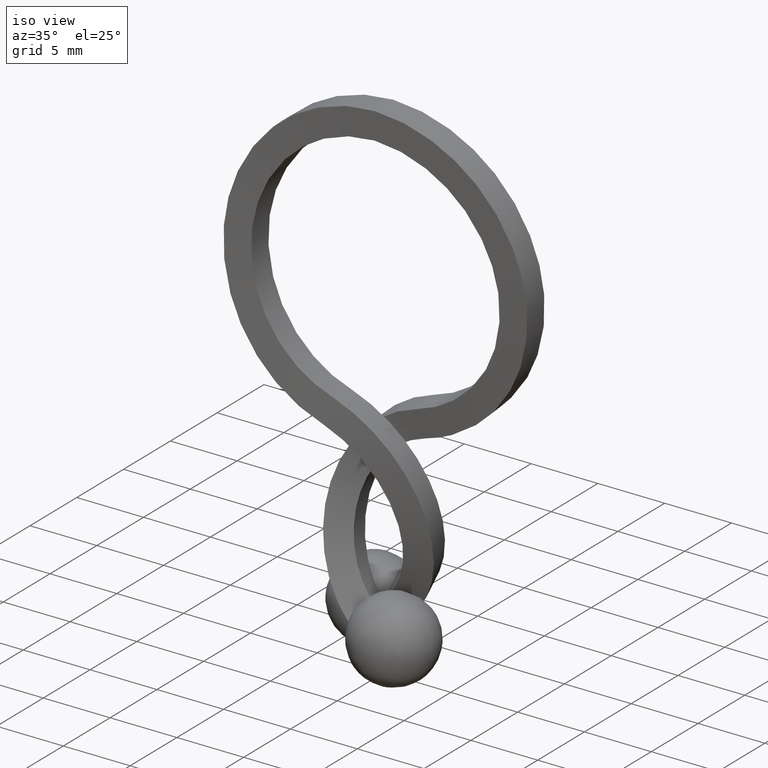
[diagram: clean part render]
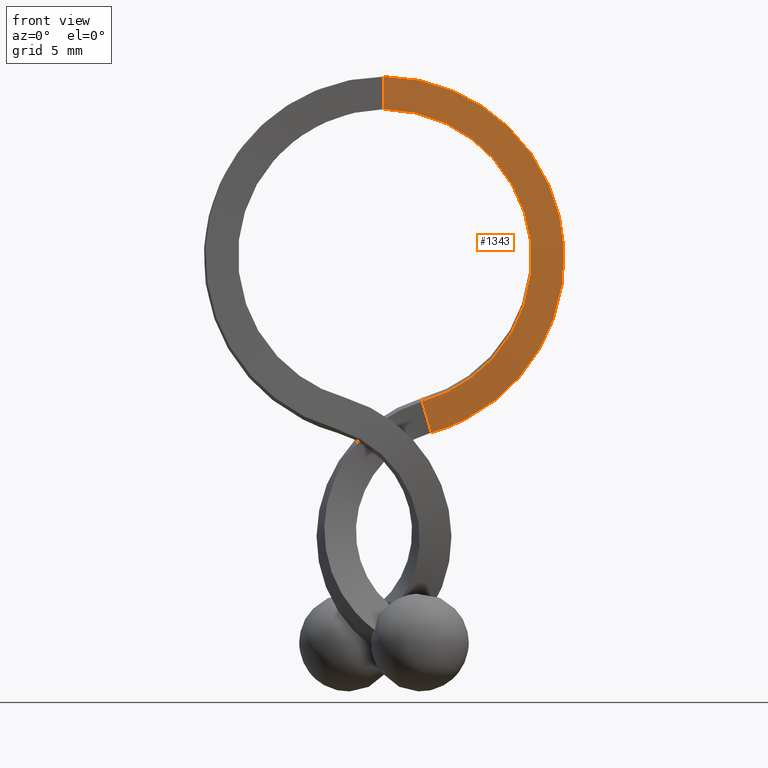
[diagram: tour spotlight — one face highlighted and labeled with its STEP entity id]
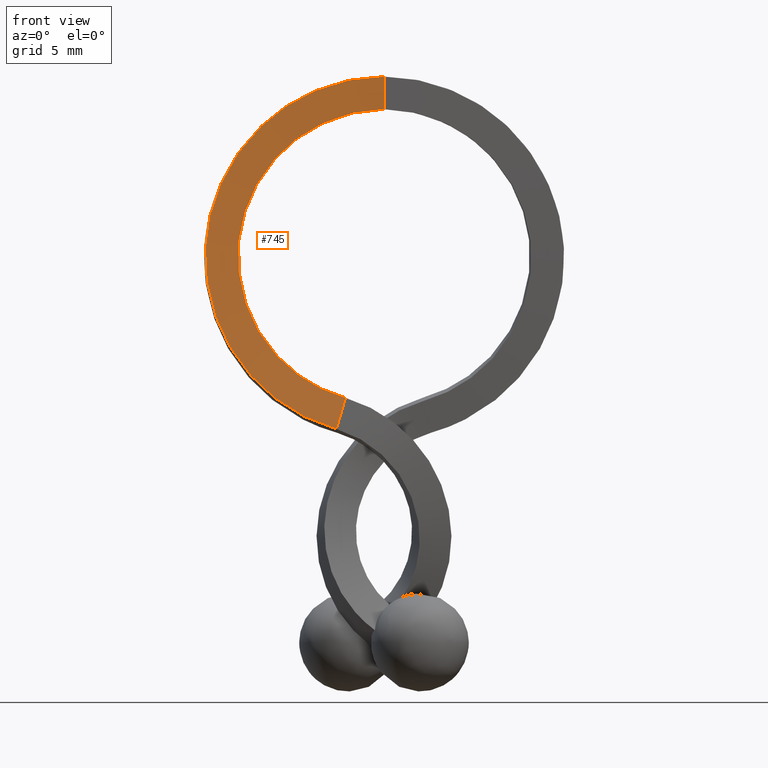
[diagram: tour spotlight — one face highlighted and labeled with its STEP entity id]
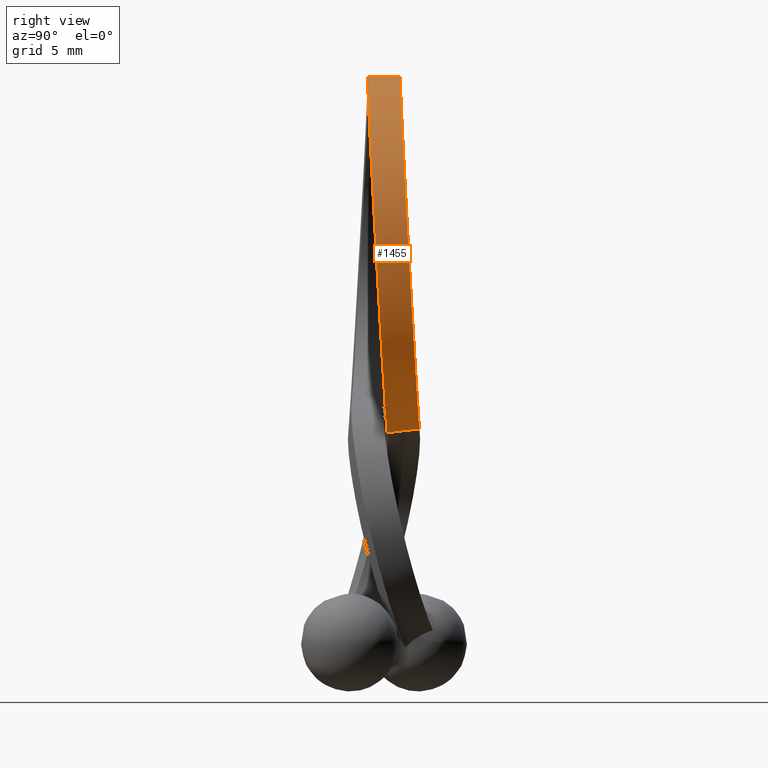
[diagram: tour spotlight — one face highlighted and labeled with its STEP entity id]
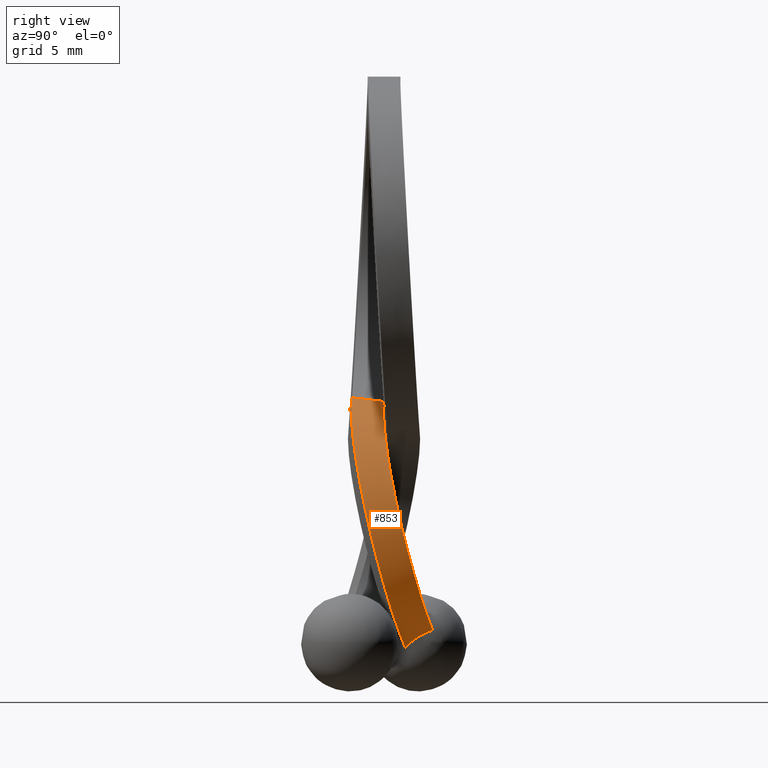
[diagram: tour spotlight — one face highlighted and labeled with its STEP entity id]
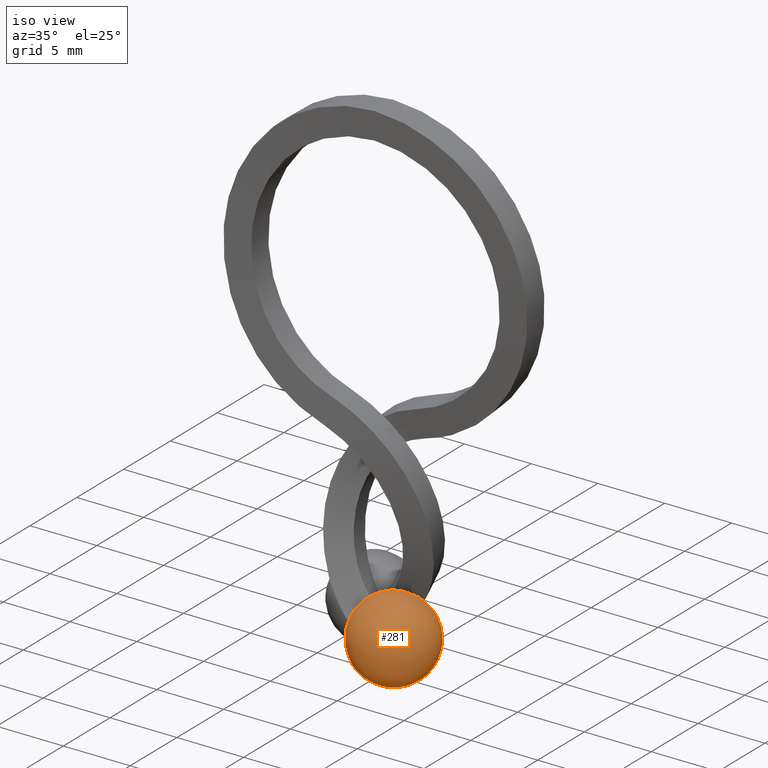
[diagram: tour spotlight — one face highlighted and labeled with its STEP entity id]
A machine part: a face-by-face anatomy tour. The part has 18 B-rep faces; the first image is the clean iso view, then the 5 largest visible faces are spotlighted one at a time (largest first), each with its STEP entity span.

Face 1 — front view, entity #1343. In plain terms, the highlighted face is a freeform B-spline surface patch.
Definition (entity closure, byte-faithful):
#355=CARTESIAN_POINT('',(0.0,-1.000000000000112,9.0));
#356=VERTEX_POINT('',#355);
#624=CARTESIAN_POINT('',(0.0,-1.000000000000086,11.0));
#625=VERTEX_POINT('',#624);
#735=CARTESIAN_POINT('',(0.0,-1.000000000000086,11.0));
#736=CARTESIAN_POINT('',(0.0,-1.000000000000086,10.333333333333320));
#737=CARTESIAN_POINT('',(0.0,-1.000000000000086,9.666666666666671));
#738=CARTESIAN_POINT('',(0.0,-1.000000000000112,9.0));
#739=QUASI_UNIFORM_CURVE('',3,(#735,#736,#737,#738),.UNSPECIFIED.,.F.,.U.);
#740=EDGE_CURVE('',#625,#356,#739,.T.);
#1202=CARTESIAN_POINT('',(2.343019980547970,-0.026249401664831,-8.919620267446240));
#1203=VERTEX_POINT('',#1202);
#1213=CARTESIAN_POINT('',(0.0,-1.000000000000112,9.0));
#1214=CARTESIAN_POINT('',(2.186437188075754,-1.013760282626769,8.978275150847695));
#1215=CARTESIAN_POINT('',(4.340397353724374,-0.982594258982890,8.147200249651466));
#1216=CARTESIAN_POINT('',(7.602344983163182,-0.845489659956815,5.260894643807681));
#1217=CARTESIAN_POINT('',(8.688726541646952,-0.740086162446244,3.218027790631194));
#1218=CARTESIAN_POINT('',(9.256002809646926,-0.505669685967330,-1.096263374060212));
#1219=CARTESIAN_POINT('',(8.734482525815411,-0.377654658548971,-3.349321000705584));
#1220=CARTESIAN_POINT('',(6.930353852553504,-0.215051211385490,-6.069702701553372));
#1221=CARTESIAN_POINT('',(6.166102131294254,-0.165803399059280,-6.866641841150305));
#1222=CARTESIAN_POINT('',(4.844223504879516,-0.103797593717068,-7.825482280904419));
#1223=CARTESIAN_POINT('',(4.374826034372745,-0.085109392166927,-8.105677289951313));
#1224=CARTESIAN_POINT('',(3.638821174862049,-0.060498273238149,-8.460077865885245));
#1225=CARTESIAN_POINT('',(3.388175806396376,-0.052863348073981,-8.567255992366398));
#1226=CARTESIAN_POINT('',(2.878109633719963,-0.038789023012683,-8.758880652709298));
#1227=CARTESIAN_POINT('',(2.635776980060761,-0.032743921131515,-8.838305404815928));
#1228=CARTESIAN_POINT('',(2.351549979623532,-0.026438718241847,-8.917249435949271));
#1229=CARTESIAN_POINT('',(2.347306179901096,-0.026344544103175,-8.918428712524824));
#1230=CARTESIAN_POINT('',(2.343019980547970,-0.026249401664831,-8.919620267446240));
#1231=B_SPLINE_CURVE_WITH_KNOTS('',3,(#1213,#1214,#1215,#1216,#1217,#1218,#1219,#1220,#1221,#1222,#1223,#1224,#1225,#1226,#1227,#1228,#1229,#1230),.UNSPECIFIED.,.F.,.U.,(4,2,2,2,2,2,2,2,4),(0.0,0.250000000000000,0.500000000000000,0.750000000000000,0.875000000000000,0.937500000000000,0.968750000000000,1.0,1.000468130172540),.UNSPECIFIED.);
#1232=EDGE_CURVE('',#356,#1203,#1231,.T.);
#1238=CARTESIAN_POINT('',(-0.160074926974946,-0.998976724639135,11.011304112899911));
#1239=CARTESIAN_POINT('',(-0.150418017580615,-0.999042801602482,10.337970242072830));
#1240=CARTESIAN_POINT('',(-0.140761108186234,-0.999108878565962,9.664636371245921));
#1241=CARTESIAN_POINT('',(-0.131104198791851,-0.999174955529309,8.991302500418982));
#1242=CARTESIAN_POINT('',(-0.106724041121813,-0.999307068883460,11.010675746363800));
#1243=CARTESIAN_POINT('',(-0.100285749198659,-0.999351768073129,10.337353561781329));
#1244=CARTESIAN_POINT('',(-0.093847457275471,-0.999396467262887,9.664031377198981));
#1245=CARTESIAN_POINT('',(-0.087409165352283,-0.999441166452556,8.990709192616608));
#1246=CARTESIAN_POINT('',(2.614065815425908,-1.017801479456671,11.008458419149459));
#1247=CARTESIAN_POINT('',(2.456375673326690,-1.016656671177269,10.333932864430860));
#1248=CARTESIAN_POINT('',(2.298685531226608,-1.015511862895614,9.659407309709966));
#1249=CARTESIAN_POINT('',(2.140995389126505,-1.014367054616214,8.984881754989115));
#1250=CARTESIAN_POINT('',(5.295496244604523,-0.979309599957399,9.979379404314406));
#1251=CARTESIAN_POINT('',(4.975545798291381,-0.980410517984660,9.365614009780064));
#1252=CARTESIAN_POINT('',(4.655595351979336,-0.981511436011647,8.751848615247917));
#1253=CARTESIAN_POINT('',(4.335644905667293,-0.982612354038499,8.138083220714666));
#1254=CARTESIAN_POINT('',(9.280145986419191,-0.812535347397364,6.466299707155577));
#1255=CARTESIAN_POINT('',(8.718096168948595,-0.823576720699825,6.062498339451690));
#1256=CARTESIAN_POINT('',(8.156046351476922,-0.834618094002558,5.658696971745615));
#1257=CARTESIAN_POINT('',(7.593996534005243,-0.845659467305428,5.254895604040646));
#1258=CARTESIAN_POINT('',(10.609588625305131,-0.684147893248679,3.977147912601544));
#1259=CARTESIAN_POINT('',(9.966115321131561,-0.702889605287850,3.722848258731068));
#1260=CARTESIAN_POINT('',(9.322642016960190,-0.721631317326472,3.468548604860598));
#1261=CARTESIAN_POINT('',(8.679168712786620,-0.740373029365370,3.214248950990395));
#1262=CARTESIAN_POINT('',(11.310892434725771,-0.398388343486529,-1.283412486214953));
#1263=CARTESIAN_POINT('',(10.622521029040371,-0.434331376623536,-1.220719862137829));
#1264=CARTESIAN_POINT('',(9.934149623352731,-0.470274409761093,-1.158027238060703));
#1265=CARTESIAN_POINT('',(9.245778217667315,-0.506217442898372,-1.095334613983849));
#1266=CARTESIAN_POINT('',(10.679768033454970,-0.242232775779345,-4.032425973549360));
#1267=CARTESIAN_POINT('',(10.028113151952720,-0.287603562275376,-3.803592276401867));
#1268=CARTESIAN_POINT('',(9.376458270448300,-0.332974348771545,-3.574758579254379));
#1269=CARTESIAN_POINT('',(8.724803388944959,-0.378345135267439,-3.345924882105801));
#1270=CARTESIAN_POINT('',(8.485494286365423,-0.043747390832505,-7.354174212470729));
#1271=CARTESIAN_POINT('',(7.964568123821809,-0.101139920555575,-6.923881705083548));
#1272=CARTESIAN_POINT('',(7.443641961279234,-0.158532450278656,-6.493589197696409));
#1273=CARTESIAN_POINT('',(6.922715798736001,-0.215924980001829,-6.063296690309590));
#1274=CARTESIAN_POINT('',(6.856674244298796,0.061513905373845,-9.058148874158889));
#1275=CARTESIAN_POINT('',(6.433164141400297,-0.002266846398707,-8.524265678839907));
#1276=CARTESIAN_POINT('',(6.009654038501305,-0.066047598171409,-7.990382483520773));
#1277=CARTESIAN_POINT('',(5.586143935602313,-0.129828349943975,-7.456499288201310));
#1278=CARTESIAN_POINT('',(4.792176010084607,0.137244880695276,-10.173503621373470));
#1279=CARTESIAN_POINT('',(4.492653709294749,0.068843477315414,-9.571323407979172));
#1280=CARTESIAN_POINT('',(4.193131408504783,0.000442073935608,-8.969143194585081));
#1281=CARTESIAN_POINT('',(3.893609107714969,-0.067959329444265,-8.366962981190849));
#1282=CARTESIAN_POINT('',(3.549067617514565,0.171669035765314,-10.642753791147230));
#1283=CARTESIAN_POINT('',(3.324302557718301,0.101158879456312,-10.011655706206231));
#1284=CARTESIAN_POINT('',(3.099537497922162,0.030648723147339,-9.380557621264888));
#1285=CARTESIAN_POINT('',(2.874772438125997,-0.039861433161628,-8.749459536323949));
#1286=CARTESIAN_POINT('',(3.221151036767519,0.179815809213675,-10.749628041946670));
#1287=CARTESIAN_POINT('',(3.025055629650234,0.108602532580780,-10.109351628138810));
#1288=CARTESIAN_POINT('',(2.828960222532813,0.037389255947922,-9.469075214331237));
#1289=CARTESIAN_POINT('',(2.632864815415461,-0.033824020684972,-8.828798800523384));
#1290=CARTESIAN_POINT('',(2.848429722638623,0.188102741099564,-10.853489330115901));
#1291=CARTESIAN_POINT('',(2.663975728952823,0.116624964023652,-10.209866302021171));
#1292=CARTESIAN_POINT('',(2.479521735267053,0.045147186947734,-9.566243273926395));
#1293=CARTESIAN_POINT('',(2.295067741581268,-0.026330590128177,-8.922620245831675));
#1294=CARTESIAN_POINT('',(2.790913225134955,0.189381435552647,-10.869514811020590));
#1295=CARTESIAN_POINT('',(2.603195002798570,0.117977122003315,-10.226817459584939));
#1296=CARTESIAN_POINT('',(2.415476780462156,0.046572808453983,-9.584120108149330));
#1297=CARTESIAN_POINT('',(2.227758558125765,-0.024831505095349,-8.941422756713713));
#1298=CARTESIAN_POINT('',(2.728113196772656,0.190777644811101,-10.887013360955590));
#1299=CARTESIAN_POINT('',(2.541490762531413,0.119349046518466,-10.244012083110700));
#1300=CARTESIAN_POINT('',(2.354868328290169,0.047920448225833,-9.601010805265846));
#1301=CARTESIAN_POINT('',(2.168245894048930,-0.023508150066802,-8.958009527420989));
#1302=B_SPLINE_SURFACE_WITH_KNOTS('',3,3,((#1238,#1242,#1246,#1250,#1254,#1258,#1262,#1266,#1270,#1274,#1278,#1282,#1286,#1290,#1294,#1298),(#1239,#1243,#1247,#1251,#1255,#1259,#1263,#1267,#1271,#1275,#1279,#1283,#1287,#1291,#1295,#1299),(#1240,#1244,#1248,#1252,#1256,#1260,#1264,#1268,#1272,#1276,#1280,#1284,#1288,#1292,#1296,#1300),(#1241,#1245,#1249,#1253,#1257,#1261,#1265,#1269,#1273,#1277,#1281,#1285,#1289,#1293,#1297,#1301)),.UNSPECIFIED.,.F.,.F.,.U.,(4,4),(4,1,2,2,2,1,2,2,4),(0.0,2.020209359649073),(0.0,0.161593473641400,8.237486770680961,16.313380067720519,24.389273364760079,28.427220013279861,31.455679999669702,32.465166661799643,32.674026877341127),.UNSPECIFIED.);
#1303=ORIENTED_EDGE('',*,*,#1232,.T.);
#1304=CARTESIAN_POINT('',(2.901770497624195,0.185794630355313,-10.828303356464280));
#1305=VERTEX_POINT('',#1304);
#1306=CARTESIAN_POINT('',(2.343019980547970,-0.026249401664831,-8.919620267446240));
#1307=CARTESIAN_POINT('',(2.390476096541876,-0.008236811523220,-9.081758698906494));
#1308=CARTESIAN_POINT('',(2.437932200781543,0.009775782775392,-9.243897133344509));
#1309=CARTESIAN_POINT('',(2.485389682380470,0.027788348679909,-9.406035168364841));
#1310=CARTESIAN_POINT('',(2.532847163982464,0.045800914585591,-9.568173203395647));
#1311=CARTESIAN_POINT('',(2.580306013627685,0.063813452317270,-9.730310841732020));
#1312=CARTESIAN_POINT('',(2.627767853168932,0.081825923876188,-9.892447613443228));
#1313=CARTESIAN_POINT('',(2.719086018244425,0.116482520989441,-10.204404179540180));
#1314=CARTESIAN_POINT('',(2.810414561498153,0.151138889379695,-10.516357738549470));
#1315=CARTESIAN_POINT('',(2.901770497624195,0.185794630355313,-10.828303356464280));
#1316=B_SPLINE_CURVE_WITH_KNOTS('',3,(#1306,#1307,#1308,#1309,#1310,#1311,#1312,#1313,#1314,#1315),.UNSPECIFIED.,.F.,.U.,(4,3,3,4),(0.0,0.000509692035208,0.001019384070476,0.002000048577367),.UNSPECIFIED.);
#1317=EDGE_CURVE('',#1203,#1305,#1316,.T.);
#1318=ORIENTED_EDGE('',*,*,#1317,.T.);
#1319=CARTESIAN_POINT('',(0.0,-1.000000000000086,11.0));
#1320=CARTESIAN_POINT('',(2.664277957426825,-1.017030261674924,10.978275083949059));
#1321=CARTESIAN_POINT('',(5.290744502438060,-0.979325945925578,9.970263999405550));
#1322=CARTESIAN_POINT('',(9.271798712087030,-0.812699328185356,6.460302657272890));
#1323=CARTESIAN_POINT('',(10.600032091296219,-0.684426235500527,3.973371185152395));
#1324=CARTESIAN_POINT('',(11.300669097243819,-0.398922150897542,-1.282481407660156));
#1325=CARTESIAN_POINT('',(10.670089990874560,-0.242906599326255,-4.029027453369905));
#1326=CARTESIAN_POINT('',(8.477636952178450,-0.044597705471169,-7.347805872762359));
#1327=CARTESIAN_POINT('',(7.548111985963731,0.015490846082073,-8.320557902948611));
#1328=CARTESIAN_POINT('',(5.939456721808130,0.091189688910444,-9.491801968244412));
#1329=CARTESIAN_POINT('',(5.368093919346840,0.114013566193409,-9.834246619753341));
#1330=CARTESIAN_POINT('',(4.472024684063484,0.144085488561915,-10.267691713423799));
#1331=CARTESIAN_POINT('',(4.166840199878131,0.153417204606867,-10.398835482279560));
#1332=CARTESIAN_POINT('',(3.545728627383425,0.170625282852517,-10.633442993420539));
#1333=CARTESIAN_POINT('',(3.218238728805475,0.178758186316790,-10.740118986506500));
#1334=CARTESIAN_POINT('',(2.906950619990810,0.185679167305744,-10.826860227044580));
#1335=CARTESIAN_POINT('',(2.904355745204612,0.185736859965535,-10.827583293315090));
#1336=CARTESIAN_POINT('',(2.901770497624195,0.185794630355313,-10.828303356464280));
#1337=B_SPLINE_CURVE_WITH_KNOTS('',3,(#1319,#1320,#1321,#1322,#1323,#1324,#1325,#1326,#1327,#1328,#1329,#1330,#1331,#1332,#1333,#1334,#1335,#1336),.UNSPECIFIED.,.F.,.U.,(4,2,2,2,2,2,2,2,4),(0.0,0.250000000000000,0.500000000000000,0.750000000000000,0.875000000000000,0.937500000000000,0.968750000000000,1.0,1.000263757885305),.UNSPECIFIED.);
#1338=EDGE_CURVE('',#625,#1305,#1337,.T.);
#1339=ORIENTED_EDGE('',*,*,#1338,.F.);
#1340=ORIENTED_EDGE('',*,*,#740,.T.);
#1341=EDGE_LOOP('',(#1303,#1318,#1339,#1340));
#1342=FACE_OUTER_BOUND('',#1341,.T.);
#1343=ADVANCED_FACE('',(#1342),#1302,.T.);

Face 2 — front view, entity #745. In plain terms, the highlighted face is a freeform B-spline surface patch.
Definition (entity closure, byte-faithful):
#355=CARTESIAN_POINT('',(0.0,-1.000000000000112,9.0));
#356=VERTEX_POINT('',#355);
#357=CARTESIAN_POINT('',(-2.358671733415280,-1.960175868653700,-8.694603899422249));
#358=VERTEX_POINT('',#357);
#359=CARTESIAN_POINT('',(0.0,-1.000000000000112,9.0));
#360=CARTESIAN_POINT('',(-2.160044607639875,-0.986222239334686,8.981542827946340));
#361=CARTESIAN_POINT('',(-4.289121531489674,-1.016777109048184,8.163465915913625));
#362=CARTESIAN_POINT('',(-7.515632274580596,-1.151762158218334,5.316503364010865));
#363=CARTESIAN_POINT('',(-8.591704229120559,-1.255666344540570,3.299802553102772));
#364=CARTESIAN_POINT('',(-9.158078603461142,-1.486917672419308,-0.961602885260092));
#365=CARTESIAN_POINT('',(-8.645969869432413,-1.613280337012496,-3.188165971543126));
#366=CARTESIAN_POINT('',(-6.867397638584657,-1.773889520182918,-5.878171976612744));
#367=CARTESIAN_POINT('',(-6.113481448117678,-1.822553276664077,-6.666536533921343));
#368=CARTESIAN_POINT('',(-4.808900553031848,-1.883856656664878,-7.615613490539588));
#369=CARTESIAN_POINT('',(-4.345562291164605,-1.902339652144862,-7.893069629687600));
#370=CARTESIAN_POINT('',(-3.618940925393079,-1.926691319504311,-8.244201571827865));
#371=CARTESIAN_POINT('',(-3.371472445355194,-1.934247800890226,-8.350429767161149));
#372=CARTESIAN_POINT('',(-2.869848842227026,-1.948126195009051,-8.539681288677091));
#373=CARTESIAN_POINT('',(-2.634191807590414,-1.954044543144272,-8.617687042733014));
#374=CARTESIAN_POINT('',(-2.358671733415280,-1.960175868653700,-8.694603899422249));
#375=B_SPLINE_CURVE_WITH_KNOTS('',3,(#359,#360,#361,#362,#363,#364,#365,#366,#367,#368,#369,#370,#371,#372,#373,#374),.UNSPECIFIED.,.F.,.U.,(4,2,2,2,2,2,2,4),(0.007002813619227,0.257002813619228,0.507002813619228,0.757002813619228,0.882002813619228,0.944502813619228,0.975752813619228,1.006752868064310),.UNSPECIFIED.);
#376=EDGE_CURVE('',#356,#358,#375,.T.);
#609=CARTESIAN_POINT('',(-2.918086088846110,-2.173184630067220,-10.602971046314000));
#610=VERTEX_POINT('',#609);
#624=CARTESIAN_POINT('',(0.0,-1.000000000000086,11.0));
#625=VERTEX_POINT('',#624);
#626=CARTESIAN_POINT('',(0.0,-1.000000000000086,11.0));
#627=CARTESIAN_POINT('',(-2.637885254668595,-0.982968862560222,10.981544523933151));
#628=CARTESIAN_POINT('',(-5.239468115913781,-1.020121979321178,9.986537795599750));
#629=CARTESIAN_POINT('',(-9.185084123649300,-1.184807492708972,6.515938458268969));
#630=CARTESIAN_POINT('',(-10.503007031348680,-1.311698946497510,4.055185525336440));
#631=CARTESIAN_POINT('',(-11.202740401248340,-1.594274202513206,-1.147756243486239));
#632=CARTESIAN_POINT('',(-10.581571977277010,-1.748755032924802,-3.867795254935917));
#633=CARTESIAN_POINT('',(-8.414674394746941,-1.945203415947330,-7.156183773388555));
#634=CARTESIAN_POINT('',(-7.495484682660098,-2.004745430964460,-8.120357236536002));
#635=CARTESIAN_POINT('',(-5.904126837887027,-2.079784149950465,-9.281833325987806));
#636=CARTESIAN_POINT('',(-5.338823157229466,-2.102414595981312,-9.621537857016127));
#637=CARTESIAN_POINT('',(-4.452137313251739,-2.132240955638183,-10.051712841757301));
#638=CARTESIAN_POINT('',(-4.150129687975393,-2.141498230115252,-10.181906254384860));
#639=CARTESIAN_POINT('',(-3.539541975815219,-2.158459057230759,-10.413347426025229));
#640=CARTESIAN_POINT('',(-3.221441999331810,-2.166406587277719,-10.517833133862940));
#641=CARTESIAN_POINT('',(-2.918086088846110,-2.173184630067220,-10.602971046314000));
#642=B_SPLINE_CURVE_WITH_KNOTS('',3,(#626,#627,#628,#629,#630,#631,#632,#633,#634,#635,#636,#637,#638,#639,#640,#641),.UNSPECIFIED.,.F.,.U.,(4,2,2,2,2,2,2,4),(0.0,0.250000000000000,0.500000000000000,0.750000000000000,0.875000000000000,0.937500000000000,0.968750000000000,0.999583580949750),.UNSPECIFIED.);
#643=EDGE_CURVE('',#625,#610,#642,.T.);
#656=CARTESIAN_POINT('',(0.129426607856104,-1.000824450084230,8.991082802349322));
#657=CARTESIAN_POINT('',(0.139076714815070,-1.000890480502354,9.664425653849060));
#658=CARTESIAN_POINT('',(0.148726821774037,-1.000956510920347,10.337768505348739));
#659=CARTESIAN_POINT('',(0.158376928732953,-1.001022541338438,11.011111356848630));
#660=CARTESIAN_POINT('',(0.086290466733332,-1.000558317400948,8.990557315125461));
#661=CARTESIAN_POINT('',(0.092724223203848,-1.000602984648894,9.663888496823310));
#662=CARTESIAN_POINT('',(0.099157979674365,-1.000647651896751,10.337219678521100));
#663=CARTESIAN_POINT('',(0.105591736144847,-1.000692319144675,11.010550860219061));
#664=CARTESIAN_POINT('',(-2.115125816775048,-0.985644386404287,8.987856773901850));
#665=CARTESIAN_POINT('',(-2.272820346721954,-0.984499594444340,9.662390470212388));
#666=CARTESIAN_POINT('',(-2.430514876668888,-0.983354802486628,10.336924166522859));
#667=CARTESIAN_POINT('',(-2.588209406614915,-0.982210010527245,11.011457862831170));
#668=CARTESIAN_POINT('',(-4.284357642021761,-1.016839568818327,8.154337137671178));
#669=CARTESIAN_POINT('',(-4.604312355711600,-1.017940501529271,8.768110718362044));
#670=CARTESIAN_POINT('',(-4.924267069401393,-1.019041434241041,9.381884299053958));
#671=CARTESIAN_POINT('',(-5.244221783092324,-1.020142366951985,9.995657879744822));
#672=CARTESIAN_POINT('',(-7.507262647063368,-1.151860416512823,5.310520341844708));
#673=CARTESIAN_POINT('',(-8.069319960943190,-1.162901937081635,5.714327095299801));
#674=CARTESIAN_POINT('',(-8.631377274822988,-1.173943457649621,6.118133848753762));
#675=CARTESIAN_POINT('',(-9.193434588701717,-1.184984978218433,6.521940602208866));
#676=CARTESIAN_POINT('',(-8.582121430552586,-1.255771154324001,3.296058412085023));
#677=CARTESIAN_POINT('',(-9.225603317130004,-1.274513116333048,3.550361457708216));
#678=CARTESIAN_POINT('',(-9.869085203707368,-1.293255078341542,3.804664503331126));
#679=CARTESIAN_POINT('',(-10.512567090282600,-1.311997040350316,4.058967548954315));
#680=CARTESIAN_POINT('',(-9.147825415290518,-1.487009779509485,-0.960601346574086));
#681=CARTESIAN_POINT('',(-9.836206002213729,-1.522953292041091,-1.023294806821745));
#682=CARTESIAN_POINT('',(-10.524586589136890,-1.558896804573245,-1.085988267069141));
#683=CARTESIAN_POINT('',(-11.212967176062280,-1.594840317105120,-1.148681727316802));
#684=CARTESIAN_POINT('',(-8.636262316674465,-1.613353243998029,-3.184677837482394));
#685=CARTESIAN_POINT('',(-9.287925889706632,-1.658724635632610,-3.413514586728375));
#686=CARTESIAN_POINT('',(-9.939589462735480,-1.704096027266913,-3.642351335974343));
#687=CARTESIAN_POINT('',(-10.591253035764391,-1.749467418901766,-3.871188085218148));
#688=CARTESIAN_POINT('',(-6.859733141814134,-1.773919539714979,-5.871651737165575));
#689=CARTESIAN_POINT('',(-7.380666252272709,-1.831312834917905,-6.301949983630997));
#690=CARTESIAN_POINT('',(-7.901599362732659,-1.888706130120917,-6.732248230096555));
#691=CARTESIAN_POINT('',(-8.422532473192629,-1.946099425323753,-7.162546476563162));
#692=CARTESIAN_POINT('',(-5.541258268441004,-1.859062903022595,-7.249837330895830));
#693=CARTESIAN_POINT('',(-5.964774019958302,-1.922844505478804,-7.783727646947292));
#694=CARTESIAN_POINT('',(-6.388289771474459,-1.986626107934889,-8.317617962998872));
#695=CARTESIAN_POINT('',(-6.811805522990762,-2.050407710391227,-8.851508279050025));
#696=CARTESIAN_POINT('',(-3.870461195977120,-1.920303423975548,-8.151614962868795));
#697=CARTESIAN_POINT('',(-4.169987491682136,-1.988705739667451,-8.753803207915169));
#698=CARTESIAN_POINT('',(-4.469513787387517,-2.057108055359398,-9.355991452961584));
#699=CARTESIAN_POINT('',(-4.769040083092644,-2.125510371051235,-9.958179698008042));
#700=CARTESIAN_POINT('',(-2.864481149397407,-1.948135200018182,-8.530886120761318));
#701=CARTESIAN_POINT('',(-3.089249207025038,-2.018646296764976,-9.161992623050397));
#702=CARTESIAN_POINT('',(-3.314017264652575,-2.089157393511803,-9.793099125339206));
#703=CARTESIAN_POINT('',(-3.538785322280342,-2.159668490258606,-10.424205627628231));
#704=CARTESIAN_POINT('',(-2.627465112970136,-1.954088146667209,-8.609302113001508));
#705=CARTESIAN_POINT('',(-2.823563135533948,-2.025302373115853,-9.249587066574019));
#706=CARTESIAN_POINT('',(-3.019661158097820,-2.096516599564486,-9.889872020146767));
#707=CARTESIAN_POINT('',(-3.215759180661566,-2.167730826013132,-10.530156973719549));
#708=CARTESIAN_POINT('',(-2.298023231544196,-1.961409074551031,-8.701035458965219));
#709=CARTESIAN_POINT('',(-2.482700741594949,-2.032882782430981,-9.344603523353101));
#710=CARTESIAN_POINT('',(-2.667378251645675,-2.104356490310920,-9.988171587740888));
#711=CARTESIAN_POINT('',(-2.852055761696442,-2.175830198190871,-10.631739652128720));
#712=CARTESIAN_POINT('',(-2.238696793759034,-1.962728438136897,-8.717573034766222));
#713=CARTESIAN_POINT('',(-2.425758914377390,-2.034148521116289,-9.360465631617851));
#714=CARTESIAN_POINT('',(-2.612821034995727,-2.105568604095674,-10.003358228469420));
#715=CARTESIAN_POINT('',(-2.799883155614072,-2.176988687075069,-10.646250825321030));
#716=CARTESIAN_POINT('',(-2.184461744342413,-1.963934353297458,-8.732687360270656));
#717=CARTESIAN_POINT('',(-2.371303391694931,-2.035359137996639,-9.375637768997173));
#718=CARTESIAN_POINT('',(-2.558145039047435,-2.106783922695816,-10.018588177723650));
#719=CARTESIAN_POINT('',(-2.744986686399949,-2.178208707394999,-10.661538586450170));
#720=B_SPLINE_SURFACE_WITH_KNOTS('',3,3,((#656,#660,#664,#668,#672,#676,#680,#684,#688,#692,#696,#700,#704,#708,#712,#716),(#657,#661,#665,#669,#673,#677,#681,#685,#689,#693,#697,#701,#705,#709,#713,#717),(#658,#662,#666,#670,#674,#678,#682,#686,#690,#694,#698,#702,#706,#710,#714,#718),(#659,#663,#667,#671,#675,#679,#683,#687,#691,#695,#699,#703,#707,#711,#715,#719)),.UNSPECIFIED.,.F.,.F.,.U.,(4,4),(4,1,2,2,2,1,2,2,4),(0.0,2.020236006340113),(0.0,0.159635756600708,8.143419276275509,16.127202795950311,24.110986315625109,28.102878075462510,31.096796895340560,32.094769835299907,32.278377146457757),.UNSPECIFIED.);
#721=CARTESIAN_POINT('',(-2.358671733415280,-1.960175868653700,-8.694603899422249));
#722=CARTESIAN_POINT('',(-2.406236822656662,-1.978269395819953,-8.856702257247230));
#723=CARTESIAN_POINT('',(-2.453793690143792,-1.996363120896857,-9.018802998060613));
#724=CARTESIAN_POINT('',(-2.501335670883174,-2.014457198618165,-9.180908050544234));
#725=CARTESIAN_POINT('',(-2.548877673218226,-2.032551284558604,-9.343013176663142));
#726=CARTESIAN_POINT('',(-2.596407264212756,-2.050645665269995,-9.505121897976462));
#727=CARTESIAN_POINT('',(-2.643925655543665,-2.068740311238750,-9.667233860920595));
#728=CARTESIAN_POINT('',(-2.735350449898801,-2.103554185199724,-9.979135262873863));
#729=CARTESIAN_POINT('',(-2.826733524946121,-2.138369047400174,-10.291048743505680));
#730=CARTESIAN_POINT('',(-2.918086088846110,-2.173184630067220,-10.602971046314000));
#731=B_SPLINE_CURVE_WITH_KNOTS('',3,(#721,#722,#723,#724,#725,#726,#727,#728,#729,#730),.UNSPECIFIED.,.F.,.U.,(4,3,3,4),(2.311885E-010,0.000509692036252,0.001019384072684,0.002000025220951),.UNSPECIFIED.);
#732=EDGE_CURVE('',#358,#610,#731,.T.);
#733=ORIENTED_EDGE('',*,*,#732,.F.);
#734=ORIENTED_EDGE('',*,*,#376,.F.);
#735=CARTESIAN_POINT('',(0.0,-1.000000000000086,11.0));
#736=CARTESIAN_POINT('',(0.0,-1.000000000000086,10.333333333333320));
#737=CARTESIAN_POINT('',(0.0,-1.000000000000086,9.666666666666671));
#738=CARTESIAN_POINT('',(0.0,-1.000000000000112,9.0));
#739=QUASI_UNIFORM_CURVE('',3,(#735,#736,#737,#738),.UNSPECIFIED.,.F.,.U.);
#740=EDGE_CURVE('',#625,#356,#739,.T.);
#741=ORIENTED_EDGE('',*,*,#740,.F.);
#742=ORIENTED_EDGE('',*,*,#643,.T.);
#743=EDGE_LOOP('',(#733,#734,#741,#742));
#744=FACE_OUTER_BOUND('',#743,.T.);
#745=ADVANCED_FACE('',(#744),#720,.T.);

Face 3 — right view, entity #1455. In plain terms, the highlighted face is a freeform B-spline surface patch.
Definition (entity closure, byte-faithful):
#503=CARTESIAN_POINT('',(0.0,1.000000000000086,11.0));
#504=VERTEX_POINT('',#503);
#624=CARTESIAN_POINT('',(0.0,-1.000000000000086,11.0));
#625=VERTEX_POINT('',#624);
#645=CARTESIAN_POINT('',(0.0,1.000000000000086,11.0));
#646=CARTESIAN_POINT('',(0.0,0.333333333333381,11.0));
#647=CARTESIAN_POINT('',(0.0,-0.333333333333354,11.0));
#648=CARTESIAN_POINT('',(0.0,-1.000000000000086,11.0));
#649=QUASI_UNIFORM_CURVE('',3,(#645,#646,#647,#648),.UNSPECIFIED.,.F.,.U.);
#650=EDGE_CURVE('',#504,#625,#649,.T.);
#1304=CARTESIAN_POINT('',(2.901770497624195,0.185794630355313,-10.828303356464280));
#1305=VERTEX_POINT('',#1304);
#1319=CARTESIAN_POINT('',(0.0,-1.000000000000086,11.0));
#1320=CARTESIAN_POINT('',(2.664277957426825,-1.017030261674924,10.978275083949059));
#1321=CARTESIAN_POINT('',(5.290744502438060,-0.979325945925578,9.970263999405550));
#1322=CARTESIAN_POINT('',(9.271798712087030,-0.812699328185356,6.460302657272890));
#1323=CARTESIAN_POINT('',(10.600032091296219,-0.684426235500527,3.973371185152395));
#1324=CARTESIAN_POINT('',(11.300669097243819,-0.398922150897542,-1.282481407660156));
#1325=CARTESIAN_POINT('',(10.670089990874560,-0.242906599326255,-4.029027453369905));
#1326=CARTESIAN_POINT('',(8.477636952178450,-0.044597705471169,-7.347805872762359));
#1327=CARTESIAN_POINT('',(7.548111985963731,0.015490846082073,-8.320557902948611));
#1328=CARTESIAN_POINT('',(5.939456721808130,0.091189688910444,-9.491801968244412));
#1329=CARTESIAN_POINT('',(5.368093919346840,0.114013566193409,-9.834246619753341));
#1330=CARTESIAN_POINT('',(4.472024684063484,0.144085488561915,-10.267691713423799));
#1331=CARTESIAN_POINT('',(4.166840199878131,0.153417204606867,-10.398835482279560));
#1332=CARTESIAN_POINT('',(3.545728627383425,0.170625282852517,-10.633442993420539));
#1333=CARTESIAN_POINT('',(3.218238728805475,0.178758186316790,-10.740118986506500));
#1334=CARTESIAN_POINT('',(2.906950619990810,0.185679167305744,-10.826860227044580));
#1335=CARTESIAN_POINT('',(2.904355745204612,0.185736859965535,-10.827583293315090));
#1336=CARTESIAN_POINT('',(2.901770497624195,0.185794630355313,-10.828303356464280));
#1337=B_SPLINE_CURVE_WITH_KNOTS('',3,(#1319,#1320,#1321,#1322,#1323,#1324,#1325,#1326,#1327,#1328,#1329,#1330,#1331,#1332,#1333,#1334,#1335,#1336),.UNSPECIFIED.,.F.,.U.,(4,2,2,2,2,2,2,2,4),(0.0,0.250000000000000,0.500000000000000,0.750000000000000,0.875000000000000,0.937500000000000,0.968750000000000,1.0,1.000263757885305),.UNSPECIFIED.);
#1338=EDGE_CURVE('',#625,#1305,#1337,.T.);
#1344=CARTESIAN_POINT('',(0.0,1.000000000000112,11.0));
#1345=CARTESIAN_POINT('',(0.0,0.333333333333381,11.0));
#1346=CARTESIAN_POINT('',(0.0,-0.333333333333354,11.0));
#1347=CARTESIAN_POINT('',(0.0,-1.000000000000086,11.0));
#1348=CARTESIAN_POINT('',(2.637885228295120,0.982969738327417,10.981544687627860));
#1349=CARTESIAN_POINT('',(2.646682804672040,0.316303071659281,10.980454819732801));
#1350=CARTESIAN_POINT('',(2.655480381049875,-0.350363595008261,10.979364951844140));
#1351=CARTESIAN_POINT('',(2.664277957426825,-1.017030261674924,10.978275083949059));
#1352=CARTESIAN_POINT('',(5.239467994413910,1.020126013886332,9.986538549724370));
#1353=CARTESIAN_POINT('',(5.256560163755650,0.353642027282519,9.981113699615250));
#1354=CARTESIAN_POINT('',(5.273652333096320,-0.312841959321663,9.975688849510400));
#1355=CARTESIAN_POINT('',(5.290744502438060,-0.979325945925578,9.970263999405550));
#1356=CARTESIAN_POINT('',(9.185083719085119,1.184820926801678,6.515940969315320));
#1357=CARTESIAN_POINT('',(9.213988716752070,0.518980841805845,6.497394865304020));
#1358=CARTESIAN_POINT('',(9.242893714420090,-0.146859243189623,6.478848761288460));
#1359=CARTESIAN_POINT('',(9.271798712087030,-0.812699328185356,6.460302657272890));
#1360=CARTESIAN_POINT('',(10.503006440144720,1.311718578212684,4.055189194817355));
#1361=CARTESIAN_POINT('',(10.535348323861180,0.646336973641348,4.027916524928945));
#1362=CARTESIAN_POINT('',(10.567690207579760,-0.019044630929590,4.000643855040800));
#1363=CARTESIAN_POINT('',(10.600032091296219,-0.684426235500527,3.973371185152395));
#1364=CARTESIAN_POINT('',(11.202739435249979,1.594306279776000,-1.147750247733824));
#1365=CARTESIAN_POINT('',(11.235382655915300,0.929896802885088,-1.192660634375844));
#1366=CARTESIAN_POINT('',(11.268025876578500,0.265487325993773,-1.237571021018134));
#1367=CARTESIAN_POINT('',(11.300669097243819,-0.398922150897542,-1.282481407660156));
#1368=CARTESIAN_POINT('',(10.581570824719581,1.748793305129625,-3.867788101249905));
#1369=CARTESIAN_POINT('',(10.611077213436481,1.084893336977444,-3.921534551956931));
#1370=CARTESIAN_POINT('',(10.640583602155520,0.420993368825795,-3.975281002663950));
#1371=CARTESIAN_POINT('',(10.670089990874560,-0.242906599326255,-4.029027453369905));
#1372=CARTESIAN_POINT('',(8.414673030104650,1.945248730713020,-7.156175303335581));
#1373=CARTESIAN_POINT('',(8.435661004129960,1.281966585318404,-7.220052159811000));
#1374=CARTESIAN_POINT('',(8.456648978154199,0.618684439923516,-7.283929016286409));
#1375=CARTESIAN_POINT('',(8.477636952178450,-0.044597705471169,-7.347805872762359));
#1376=CARTESIAN_POINT('',(7.495483258530710,2.004792721078325,-8.120348397258901));
#1377=CARTESIAN_POINT('',(7.513026167674870,1.341692096079620,-8.187084899155831));
#1378=CARTESIAN_POINT('',(7.530569076819559,0.678591471080912,-8.253821401051679));
#1379=CARTESIAN_POINT('',(7.548111985963731,0.015490846082073,-8.320557902948611));
#1380=CARTESIAN_POINT('',(5.904125346697549,2.079833666883965,-9.281824070482571));
#1381=CARTESIAN_POINT('',(5.915902471734500,1.416952340892770,-9.351816703069670));
#1382=CARTESIAN_POINT('',(5.927679596771180,0.754071014901573,-9.421809335657310));
#1383=CARTESIAN_POINT('',(5.939456721808130,0.091189688910444,-9.491801968244412));
#1384=CARTESIAN_POINT('',(5.338821647375529,2.102464732693170,-9.621528485664451));
#1385=CARTESIAN_POINT('',(5.348579071365970,1.439647677193228,-9.692434530360739));
#1386=CARTESIAN_POINT('',(5.358336495356410,0.776830621693318,-9.763340575057040));
#1387=CARTESIAN_POINT('',(5.368093919346840,0.114013566193409,-9.834246619753341));
#1388=CARTESIAN_POINT('',(4.452135781385990,2.132291823281415,-10.051703333782839));
#1389=CARTESIAN_POINT('',(4.458765415611826,1.469556378374924,-10.123699460329821));
#1390=CARTESIAN_POINT('',(4.465395049837655,0.806820933468419,-10.195695586876820));
#1391=CARTESIAN_POINT('',(4.472024684063484,0.144085488561915,-10.267691713423799));
#1392=CARTESIAN_POINT('',(4.150128149767495,2.141549308357980,-10.181896707046000));
#1393=CARTESIAN_POINT('',(4.155698833137706,1.478838607107644,-10.254209632123841));
#1394=CARTESIAN_POINT('',(4.161269516507920,0.816127905857272,-10.326522557201701));
#1395=CARTESIAN_POINT('',(4.166840199878131,0.153417204606867,-10.398835482279560));
#1396=CARTESIAN_POINT('',(3.535444974488720,2.158624251896780,-10.414890179787539));
#1397=CARTESIAN_POINT('',(3.538872858786955,1.495957928881990,-10.487741117665200));
#1398=CARTESIAN_POINT('',(3.542300743085190,0.833291605867237,-10.560592055542880));
#1399=CARTESIAN_POINT('',(3.545728627383425,0.170625282852517,-10.633442993420539));
#1400=CARTESIAN_POINT('',(3.212845618328925,2.166672747583700,-10.520643822600039));
#1401=CARTESIAN_POINT('',(3.214643321821110,1.504034560494765,-10.593802210568860));
#1402=CARTESIAN_POINT('',(3.216441025313290,0.841396373405776,-10.666960598537679));
#1403=CARTESIAN_POINT('',(3.218238728805475,0.178758186316790,-10.740118986506500));
#1404=CARTESIAN_POINT('',(2.844237487949729,2.174881265921541,-10.623594984782510));
#1405=CARTESIAN_POINT('',(2.845379315339685,1.512253287629505,-10.696856951443610));
#1406=CARTESIAN_POINT('',(2.846521142729641,0.849625309337471,-10.770118918104700));
#1407=CARTESIAN_POINT('',(2.847662970119601,0.186997331045441,-10.843380884765820));
#1408=CARTESIAN_POINT('',(2.787758889567327,2.176135026857911,-10.639297621780720));
#1409=CARTESIAN_POINT('',(2.789068406493626,1.513503945409978,-10.712524179597141));
#1410=CARTESIAN_POINT('',(2.790377923419924,0.850872863962047,-10.785750737413551));
#1411=CARTESIAN_POINT('',(2.791687440346222,0.188241782514116,-10.858977295229970));
#1412=CARTESIAN_POINT('',(2.727347731590554,2.177477842457661,-10.656125418534639));
#1413=CARTESIAN_POINT('',(2.728613392603219,1.514847830001080,-10.729365897464699));
#1414=CARTESIAN_POINT('',(2.729879053615884,0.852217817544496,-10.802606376394751));
#1415=CARTESIAN_POINT('',(2.731144714628546,0.189587805087914,-10.875846855324800));
#1416=B_SPLINE_SURFACE_WITH_KNOTS('',3,3,((#1344,#1348,#1352,#1356,#1360,#1364,#1368,#1372,#1376,#1380,#1384,#1388,#1392,#1396,#1400,#1404,#1408,#1412),(#1345,#1349,#1353,#1357,#1361,#1365,#1369,#1373,#1377,#1381,#1385,#1389,#1393,#1397,#1401,#1405,#1409,#1413),(#1346,#1350,#1354,#1358,#1362,#1366,#1370,#1374,#1378,#1382,#1386,#1390,#1394,#1398,#1402,#1406,#1410,#1414),(#1347,#1351,#1355,#1359,#1363,#1367,#1371,#1375,#1379,#1383,#1387,#1391,#1395,#1399,#1403,#1407,#1411,#1415)),.UNSPECIFIED.,.F.,.F.,.U.,(4,4),(4,2,2,2,2,2,2,2,4),(0.0,2.000000000000199),(0.0,8.068239731317336,16.136479462634671,24.204719193952009,28.238839059610680,30.255898992440009,31.264428958854680,32.272958925269343,32.475176107001722),.UNSPECIFIED.);
#1417=CARTESIAN_POINT('',(2.918086088846110,2.173184630067220,-10.602971046314000));
#1418=VERTEX_POINT('',#1417);
#1419=CARTESIAN_POINT('',(2.918086088846110,2.173184630067220,-10.602971046314000));
#1420=CARTESIAN_POINT('',(2.916354178478342,2.007583351871401,-10.621855719508041));
#1421=CARTESIAN_POINT('',(2.914716159038839,1.841977857999221,-10.640713084444419));
#1422=CARTESIAN_POINT('',(2.913175780505263,1.676368196790214,-10.659542337351571));
#1423=CARTESIAN_POINT('',(2.911635401945732,1.510758532790647,-10.678371590576001));
#1424=CARTESIAN_POINT('',(2.910192658464898,1.345144638424461,-10.697172739980511));
#1425=CARTESIAN_POINT('',(2.908853606032458,1.179526489220630,-10.715944330896340));
#1426=CARTESIAN_POINT('',(2.906175543177919,0.848295386781713,-10.753486923803401));
#1427=CARTESIAN_POINT('',(2.904047142048638,0.517042013293782,-10.790874764776600));
#1428=CARTESIAN_POINT('',(2.901770497624195,0.185794630355313,-10.828303356464280));
#1429=B_SPLINE_CURVE_WITH_KNOTS('',3,(#1419,#1420,#1421,#1422,#1423,#1424,#1425,#1426,#1427,#1428),.UNSPECIFIED.,.F.,.U.,(4,3,3,4),(0.0,0.000500044290662,0.001000088595888,0.002000161805868),.UNSPECIFIED.);
#1430=EDGE_CURVE('',#1418,#1305,#1429,.T.);
#1431=ORIENTED_EDGE('',*,*,#1430,.F.);
#1432=CARTESIAN_POINT('',(0.0,1.000000000000086,11.0));
#1433=CARTESIAN_POINT('',(2.637885254668595,0.982968862560222,10.981544523933151));
#1434=CARTESIAN_POINT('',(5.239468115913781,1.020121979321178,9.986537795599750));
#1435=CARTESIAN_POINT('',(9.185084123649300,1.184807492708972,6.515938458268969));
#1436=CARTESIAN_POINT('',(10.503007031348680,1.311698946497510,4.055185525336440));
#1437=CARTESIAN_POINT('',(11.202740401248340,1.594274202513206,-1.147756243486239));
#1438=CARTESIAN_POINT('',(10.581571977277010,1.748755032924802,-3.867795254935917));
#1439=CARTESIAN_POINT('',(8.414674394746941,1.945203415947330,-7.156183773388555));
#1440=CARTESIAN_POINT('',(7.495484682660098,2.004745430964460,-8.120357236536002));
#1441=CARTESIAN_POINT('',(5.904126837887027,2.079784149950465,-9.281833325987806));
#1442=CARTESIAN_POINT('',(5.338823157229466,2.102414595981312,-9.621537857016127));
#1443=CARTESIAN_POINT('',(4.452137313251739,2.132240955638183,-10.051712841757301));
#1444=CARTESIAN_POINT('',(4.150129687975393,2.141498230115252,-10.181906254384860));
#1445=CARTESIAN_POINT('',(3.539541975815219,2.158459057230759,-10.413347426025229));
#1446=CARTESIAN_POINT('',(3.221441999331810,2.166406587277719,-10.517833133862940));
#1447=CARTESIAN_POINT('',(2.918086088846110,2.173184630067220,-10.602971046314000));
#1448=B_SPLINE_CURVE_WITH_KNOTS('',3,(#1432,#1433,#1434,#1435,#1436,#1437,#1438,#1439,#1440,#1441,#1442,#1443,#1444,#1445,#1446,#1447),.UNSPECIFIED.,.F.,.U.,(4,2,2,2,2,2,2,4),(0.0,0.250000000000000,0.500000000000000,0.750000000000000,0.875000000000000,0.937500000000000,0.968750000000000,0.999583580949750),.UNSPECIFIED.);
#1449=EDGE_CURVE('',#504,#1418,#1448,.T.);
#1450=ORIENTED_EDGE('',*,*,#1449,.F.);
#1451=ORIENTED_EDGE('',*,*,#650,.T.);
#1452=ORIENTED_EDGE('',*,*,#1338,.T.);
#1453=EDGE_LOOP('',(#1431,#1450,#1451,#1452));
#1454=FACE_OUTER_BOUND('',#1453,.T.);
#1455=ADVANCED_FACE('',(#1454),#1416,.T.);

Face 4 — right view, entity #853. In plain terms, the highlighted face is a freeform B-spline surface patch.
Definition (entity closure, byte-faithful):
#88=CARTESIAN_POINT('',(0.562989896993317,2.993018793894280,-22.946073593699801));
#89=VERTEX_POINT('',#88);
#90=CARTESIAN_POINT('',(0.674003210500367,1.294515618744942,-24.002159655791001));
#91=VERTEX_POINT('',#90);
#92=CARTESIAN_POINT('',(0.562989896993317,2.993018793894280,-22.946073593699801));
#93=CARTESIAN_POINT('',(0.625487875216806,2.838644896647585,-22.992262270440150));
#94=CARTESIAN_POINT('',(0.675076408019268,2.684167226220337,-23.049990980960551));
#95=CARTESIAN_POINT('',(0.748336848174747,2.376842553886166,-23.189612446248589));
#96=CARTESIAN_POINT('',(0.771128858992046,2.227837443091896,-23.269727561428478));
#97=CARTESIAN_POINT('',(0.785350560071650,2.011152163125904,-23.404942437210689));
#98=CARTESIAN_POINT('',(0.786735567627115,1.940064008534641,-23.452531355143272));
#99=CARTESIAN_POINT('',(0.783627493370677,1.835152699307017,-23.527734830163389));
#100=CARTESIAN_POINT('',(0.781716551858957,1.800405793849225,-23.553492239177800));
#101=CARTESIAN_POINT('',(0.776184612336564,1.732169049288397,-23.605764375316081));
#102=CARTESIAN_POINT('',(0.772564743885569,1.698605095555714,-23.632329017684640));
#103=CARTESIAN_POINT('',(0.750246223486381,1.533481926798328,-23.767221258280770));
#104=CARTESIAN_POINT('',(0.719019334016568,1.409955380388857,-23.881721477389600));
#105=CARTESIAN_POINT('',(0.674003210500367,1.294515618744942,-24.002159655791001));
#106=B_SPLINE_CURVE_WITH_KNOTS('',3,(#92,#93,#94,#95,#96,#97,#98,#99,#100,#101,#102,#103,#104,#105),.UNSPECIFIED.,.F.,.U.,(4,2,2,2,2,2,4),(0.0,0.249999999999999,0.499999999999998,0.624999999999999,0.687500000000000,0.750000000000000,1.0),.UNSPECIFIED.);
#107=EDGE_CURVE('',#89,#91,#106,.T.);
#357=CARTESIAN_POINT('',(-2.358671733415280,-1.960175868653700,-8.694603899422249));
#358=VERTEX_POINT('',#357);
#378=CARTESIAN_POINT('',(-2.343019980547970,0.026249401664831,-8.919620267446240));
#379=VERTEX_POINT('',#378);
#380=CARTESIAN_POINT('',(-2.358671733415280,-1.960175868653700,-8.694603899422249));
#381=CARTESIAN_POINT('',(-2.357048697557785,-1.751445114865986,-8.718243050517476));
#382=CARTESIAN_POINT('',(-2.353708493728335,-1.321887858601402,-8.766891240021826));
#383=CARTESIAN_POINT('',(-2.348404500502874,-0.659749568949974,-8.841921069176765));
#384=CARTESIAN_POINT('',(-2.344845590262677,-0.206337049034967,-8.893276524201962));
#385=CARTESIAN_POINT('',(-2.343019980547970,0.026249401664831,-8.919620267446240));
#386=B_SPLINE_CURVE_WITH_KNOTS('',3,(#380,#381,#382,#383,#384,#385),.UNSPECIFIED.,.F.,.U.,(4,1,1,4),(0.0,0.315074572516536,0.648407421386868,0.999492347618316),.UNSPECIFIED.);
#387=EDGE_CURVE('',#358,#379,#386,.T.);
#746=CARTESIAN_POINT('',(-2.435627884830732,0.041603160508839,-8.893182786935876));
#747=CARTESIAN_POINT('',(-2.455156732027250,-0.626669428963493,-8.813143741804492));
#748=CARTESIAN_POINT('',(-2.474685579223758,-1.294942018435824,-8.733104696673111));
#749=CARTESIAN_POINT('',(-2.494214426420274,-1.963214607908153,-8.653065651541725));
#750=CARTESIAN_POINT('',(-2.390609460111038,0.038970524950691,-8.906556444197138));
#751=CARTESIAN_POINT('',(-2.410323750397735,-0.629290150838547,-8.826466795996851));
#752=CARTESIAN_POINT('',(-2.430038040684427,-1.297550826627786,-8.746377147796563));
#753=CARTESIAN_POINT('',(-2.449752330971123,-1.965811502417020,-8.666287499596283));
#754=CARTESIAN_POINT('',(-2.347387594928677,0.036441385811843,-8.919389829881911));
#755=CARTESIAN_POINT('',(-2.367822606064192,-0.631775778087387,-8.839091803988811));
#756=CARTESIAN_POINT('',(-2.388257617199725,-1.299992941986615,-8.758793778095713));
#757=CARTESIAN_POINT('',(-2.408692628335240,-1.968210105885839,-8.678495752202620));
#758=CARTESIAN_POINT('',(-2.102475191818294,0.022210721223379,-8.992530475569513));
#759=CARTESIAN_POINT('',(-2.119109092395057,-0.646245320485338,-8.913292018626263));
#760=CARTESIAN_POINT('',(-2.135742992971732,-1.314701362194054,-8.834053561683001));
#761=CARTESIAN_POINT('',(-2.152376893548495,-1.983157403902795,-8.754815104739754));
#762=CARTESIAN_POINT('',(-1.887747769234420,0.011900821895416,-9.065749893773564));
#763=CARTESIAN_POINT('',(-1.895283882469431,-0.657066682450753,-8.989300434595419));
#764=CARTESIAN_POINT('',(-1.902819995704504,-1.326034186796918,-8.912850975417436));
#765=CARTESIAN_POINT('',(-1.910356108939524,-1.995001691143075,-8.836401516239256));
#766=CARTESIAN_POINT('',(-1.081361664683047,-0.018325724848009,-9.376350838812126));
#767=CARTESIAN_POINT('',(-1.065054476162237,-0.688311871905234,-9.308561111506537));
#768=CARTESIAN_POINT('',(-1.048747287641339,-1.358298018962450,-9.240771384201091));
#769=CARTESIAN_POINT('',(-1.032440099120590,-2.028284166019713,-9.172981656896008));
#770=CARTESIAN_POINT('',(0.268718344838542,-0.024283840412859,-10.083735648048490));
#771=CARTESIAN_POINT('',(0.325056766544193,-0.694678461067932,-10.035947807776211));
#772=CARTESIAN_POINT('',(0.381395188249991,-1.365073081723000,-9.988159967503711));
#773=CARTESIAN_POINT('',(0.437733609955978,-2.035467702377960,-9.940372127230786));
#774=CARTESIAN_POINT('',(1.385580328448778,0.079532622516133,-11.125272625969179));
#775=CARTESIAN_POINT('',(1.475307469896623,-0.588040997510264,-11.107435708441541));
#776=CARTESIAN_POINT('',(1.565034611344558,-1.255614617536659,-11.089598790913721));
#777=CARTESIAN_POINT('',(1.654761752792166,-1.923188237563209,-11.071761873386560));
#778=CARTESIAN_POINT('',(2.978773532074123,0.356711011889146,-13.152719778599280));
#779=CARTESIAN_POINT('',(3.116453001047982,-0.303088718376132,-13.193518952021680));
#780=CARTESIAN_POINT('',(3.254132470021838,-0.962888448641411,-13.234318125444091));
#781=CARTESIAN_POINT('',(3.391811938996385,-1.622688178906342,-13.275117298865110));
#782=CARTESIAN_POINT('',(3.597441051600312,0.676096921902736,-14.828632066757219));
#783=CARTESIAN_POINT('',(3.754272215556001,0.025467072602755,-14.918301897446590));
#784=CARTESIAN_POINT('',(3.911103379511689,-0.625162776697225,-15.007971728130419));
#785=CARTESIAN_POINT('',(4.067934543467378,-1.275792625997379,-15.097641558819779));
#786=CARTESIAN_POINT('',(3.713292973980882,1.463021158562372,-18.193797158275711));
#787=CARTESIAN_POINT('',(3.875533448445007,0.835230248988561,-18.382244752117931));
#788=CARTESIAN_POINT('',(4.037773922909133,0.207439339414749,-18.570692345965721));
#789=CARTESIAN_POINT('',(4.200014397373258,-0.420351570158890,-18.759139939807930));
#790=CARTESIAN_POINT('',(3.210171670300730,1.928482973424104,-19.874170066155308));
#791=CARTESIAN_POINT('',(3.358655486367866,1.314300855910614,-20.112264114129118));
#792=CARTESIAN_POINT('',(3.507139302435005,0.700118738397124,-20.350358162100161));
#793=CARTESIAN_POINT('',(3.655623118500759,0.085936620884325,-20.588452210073971));
#794=CARTESIAN_POINT('',(1.733592412017778,2.613185546329875,-21.946505166967089));
#795=CARTESIAN_POINT('',(1.839994449289251,2.019150614336765,-22.246318218834791));
#796=CARTESIAN_POINT('',(1.946396486560719,1.425115682343662,-22.546131270703960));
#797=CARTESIAN_POINT('',(2.052798523832910,0.831080750350197,-22.845944322571679));
#798=CARTESIAN_POINT('',(1.100306821503991,2.843331970508324,-22.568768694557701));
#799=CARTESIAN_POINT('',(1.188501297285866,2.256092915627096,-22.887223370840349));
#800=CARTESIAN_POINT('',(1.276695773066943,1.668853860745329,-23.205678047121680));
#801=CARTESIAN_POINT('',(1.364890248849199,1.081614805863503,-23.524132723404509));
#802=CARTESIAN_POINT('',(0.378939271157280,3.056739904274532,-23.073006872211732));
#803=CARTESIAN_POINT('',(0.446271526822792,2.475825852675428,-23.406687064122529));
#804=CARTESIAN_POINT('',(0.513603782487166,1.894911801075551,-23.740367256030439));
#805=CARTESIAN_POINT('',(0.580936038152733,1.313997749475833,-24.074047447941499));
#806=B_SPLINE_SURFACE_WITH_KNOTS('',3,3,((#746,#750,#754,#758,#762,#766,#770,#774,#778,#782,#786,#790,#794,#798,#802),(#747,#751,#755,#759,#763,#767,#771,#775,#779,#783,#787,#791,#795,#799,#803),(#748,#752,#756,#760,#764,#768,#772,#776,#780,#784,#788,#792,#796,#800,#804),(#749,#753,#757,#761,#765,#769,#773,#777,#781,#785,#789,#793,#797,#801,#805)),.UNSPECIFIED.,.F.,.F.,.U.,(4,4),(4,2,2,1,2,2,2,4),(0.0,2.020002729036798),(0.0,0.177435660538620,0.903142439019978,3.080262774464051,5.983089888389480,11.788744116240339,17.594398344091200,20.637143195492381),.UNSPECIFIED.);
#807=ORIENTED_EDGE('',*,*,#107,.F.);
#808=CARTESIAN_POINT('',(-2.343019980547970,0.026249401664831,-8.919620267446240));
#809=CARTESIAN_POINT('',(-2.328873158148021,0.025424552240254,-8.923833127507283));
#810=CARTESIAN_POINT('',(-2.314454788468011,0.024585064959228,-8.928131868227892));
#811=CARTESIAN_POINT('',(-2.102724740778106,0.012282224094438,-8.991361900011517));
#812=CARTESIAN_POINT('',(-1.887861882150655,0.001958220313909,-9.064595574533961));
#813=CARTESIAN_POINT('',(-1.484445463366080,-0.013149086828943,-9.220042203482507));
#814=CARTESIAN_POINT('',(-1.285685964906115,-0.018477122987230,-9.305505683612408));
#815=CARTESIAN_POINT('',(-0.700010365309183,-0.027742017279396,-9.584341388283615));
#816=CARTESIAN_POINT('',(-0.323713400784969,-0.024944345095048,-9.800214340787839));
#817=CARTESIAN_POINT('',(0.748541599144377,0.010255868453404,-10.529605563832639));
#818=CARTESIAN_POINT('',(1.386859524459401,0.069622496764861,-11.125009821918690));
#819=CARTESIAN_POINT('',(2.980817194532098,0.346910563989227,-13.153331408402520));
#820=CARTESIAN_POINT('',(3.599769519285019,0.666432502432129,-14.829968625182101));
#821=CARTESIAN_POINT('',(3.715702373559793,1.453695651395375,-18.196599076363089));
#822=CARTESIAN_POINT('',(3.212376982986500,1.919359455819912,-19.877708548537061));
#823=CARTESIAN_POINT('',(1.778579756744054,2.584232713626742,-21.890038046632839));
#824=CARTESIAN_POINT('',(1.208975882375264,2.795219975416260,-22.466446165435251));
#825=CARTESIAN_POINT('',(0.562989896993317,2.993018793894280,-22.946073593699801));
#826=B_SPLINE_CURVE_WITH_KNOTS('',3,(#808,#809,#810,#811,#812,#813,#814,#815,#816,#817,#818,#819,#820,#821,#822,#823,#824,#825),.UNSPECIFIED.,.F.,.U.,(4,2,2,2,2,2,2,2,4),(-0.002363725979825,0.0,0.031250000000000,0.062500000000000,0.125000000000000,0.250000000000000,0.500000000000000,0.750000000000000,0.869828844565417),.UNSPECIFIED.);
#827=EDGE_CURVE('',#379,#89,#826,.T.);
#828=ORIENTED_EDGE('',*,*,#827,.F.);
#829=ORIENTED_EDGE('',*,*,#387,.F.);
#830=CARTESIAN_POINT('',(-2.358671733415280,-1.960175868653700,-8.694603899422249));
#831=CARTESIAN_POINT('',(-2.358454592620007,-1.960188537752270,-8.694668553772393));
#832=CARTESIAN_POINT('',(-2.358237279756053,-1.960201216811504,-8.694733259686863));
#833=CARTESIAN_POINT('',(-2.152106569537881,-1.972227781500567,-8.756109950193906));
#834=CARTESIAN_POINT('',(-1.910220836533945,-1.984079235097631,-8.837624558718229));
#835=CARTESIAN_POINT('',(-1.471389839082284,-2.000713492751328,-9.005937561155770));
#836=CARTESIAN_POINT('',(-1.255166186935915,-2.006612031072719,-9.098514206081088));
#837=CARTESIAN_POINT('',(-0.617981927692510,-2.017004876738490,-9.400664737509512));
#838=CARTESIAN_POINT('',(-0.208525575026950,-2.014179772950690,-9.634719548518111));
#839=CARTESIAN_POINT('',(0.958419201950700,-1.976560978559862,-10.425883596719890));
#840=CARTESIAN_POINT('',(1.653391858606968,-1.912452860906464,-11.072117693143040));
#841=CARTESIAN_POINT('',(3.389782446386424,-1.612232839395255,-13.274588682967581));
#842=CARTESIAN_POINT('',(4.065617755851418,-1.265596714494927,-15.096372623928239));
#843=CARTESIAN_POINT('',(4.197611814971455,-0.410729745211632,-18.756376339238159));
#844=CARTESIAN_POINT('',(3.653422262711807,0.095245302167541,-20.584938206898279));
#845=CARTESIAN_POINT('',(2.073374750477606,0.829664972212943,-22.810295247553999));
#846=CARTESIAN_POINT('',(1.418662508044106,1.070212742831414,-23.464727506197750));
#847=CARTESIAN_POINT('',(0.674003210500367,1.294515618744942,-24.002159655791001));
#848=B_SPLINE_CURVE_WITH_KNOTS('',3,(#830,#831,#832,#833,#834,#835,#836,#837,#838,#839,#840,#841,#842,#843,#844,#845,#846,#847),.UNSPECIFIED.,.F.,.U.,(4,2,2,2,2,2,2,2,4),(0.113561345420679,0.113594351732374,0.144844351732374,0.176094351732374,0.238594351732374,0.363594351732374,0.613594351732374,0.863594351732374,0.989350646064616),.UNSPECIFIED.);
#849=EDGE_CURVE('',#358,#91,#848,.T.);
#850=ORIENTED_EDGE('',*,*,#849,.T.);
#851=EDGE_LOOP('',(#807,#828,#829,#850));
#852=FACE_OUTER_BOUND('',#851,.T.);
#853=ADVANCED_FACE('',(#852),#806,.T.);

Face 5 — iso view, entity #281. In plain terms, the highlighted face is a freeform B-spline surface patch.
Definition (entity closure, byte-faithful):
#163=CARTESIAN_POINT('',(-0.700560616649275,-2.091584233000643,-22.934051382918554));
#164=CARTESIAN_POINT('',(-0.744840114797738,-2.102431190374202,-23.101613645094250));
#165=CARTESIAN_POINT('',(-0.793411136826866,-1.862727446340496,-23.467356558720091));
#166=CARTESIAN_POINT('',(-0.707468681904333,-1.338470539484609,-23.506014912731967));
#167=CARTESIAN_POINT('',(-0.578045518611615,-1.079577806343273,-23.180538999668116));
#168=CARTESIAN_POINT('',(-0.536235881253859,-1.077287450793196,-23.016573161315840));
#169=CARTESIAN_POINT('',(-0.698568646413951,-2.241728996122533,-22.924858320094629));
#170=CARTESIAN_POINT('',(-0.760920550849717,-2.331987028782865,-23.159986217437147));
#171=CARTESIAN_POINT('',(-0.867070232891878,-2.114325675117202,-23.897137137142888));
#172=CARTESIAN_POINT('',(-0.707450010921312,-1.140627589376357,-23.968936983376668));
#173=CARTESIAN_POINT('',(-0.521885646023685,-0.867134043741695,-23.273602719076710));
#174=CARTESIAN_POINT('',(-0.485992101843425,-0.932953109371456,-23.031400952159395));
#175=CARTESIAN_POINT('',(-0.604084946025840,-2.553710035773759,-22.704908661944124));
#176=CARTESIAN_POINT('',(-0.633244148197622,-3.021138986399538,-22.944064154886433));
#177=CARTESIAN_POINT('',(-0.261272849287466,-11.505868748010229,-32.480506103812971));
#178=CARTESIAN_POINT('',(2.648557205679543,6.244363142251187,-33.789396342993207));
#179=CARTESIAN_POINT('',(-0.173166093370646,-0.223400541054428,-23.158664572833878));
#180=CARTESIAN_POINT('',(-0.286992228150505,-0.628746409640146,-22.855671994745006));
#181=CARTESIAN_POINT('',(-0.404879166742500,-2.553710035773759,-22.262048790023293));
#182=CARTESIAN_POINT('',(-0.245278891733604,-3.021138986399538,-22.081567873877400));
#183=CARTESIAN_POINT('',(7.137031401273547,-11.505868748010229,-16.033131511459491));
#184=CARTESIAN_POINT('',(10.046861456240560,6.244363142251187,-17.342021750639731));
#185=CARTESIAN_POINT('',(0.220522897604992,-0.223400541054428,-22.283443699486991));
#186=CARTESIAN_POINT('',(-0.081703476417715,-0.628746409640146,-22.399288898701091));
#187=CARTESIAN_POINT('',(-0.302653068458748,-2.240704526287682,-22.044719969999402));
#188=CARTESIAN_POINT('',(-0.168228061885807,-2.330247956162823,-21.842183776253382));
#189=CARTESIAN_POINT('',(0.310925709245508,-2.111856582452285,-21.275691119106096));
#190=CARTESIAN_POINT('',(0.469822884654617,-1.142569147467973,-21.347165726900208));
#191=CARTESIAN_POINT('',(0.074808878722549,-0.868747178193711,-21.945419961241708));
#192=CARTESIAN_POINT('',(-0.082240480971688,-0.933942444882295,-22.132942298648960));
#193=CARTESIAN_POINT('',(-0.297345710615659,-2.089228237381507,-22.037727949221409));
#194=CARTESIAN_POINT('',(-0.201898920305559,-2.099194494358368,-21.894267084066641));
#195=CARTESIAN_POINT('',(0.037052225327754,-1.860003894864657,-21.618250769825131));
#196=CARTESIAN_POINT('',(0.122197118231843,-1.340612189930129,-21.656550367098163));
#197=CARTESIAN_POINT('',(-0.033225655245819,-1.082566205294426,-21.966269556658570));
#198=CARTESIAN_POINT('',(-0.127362937099692,-1.079541711139931,-22.105620296255793));
#206=(BOUNDED_SURFACE()B_SPLINE_SURFACE(2,2,((#163,#169,#175,#181,#187,#193),(#164,#170,#176,#182,#188,#194),(#165,#171,#177,#183,#189,#195),(#166,#172,#178,#184,#190,#196),(#167,#173,#179,#185,#191,#197),(#168,#174,#180,#186,#192,#198)),.UNSPECIFIED.,.F.,.F.,.U.)B_SPLINE_SURFACE_WITH_KNOTS((3,1,1,1,3),(3,1,1,1,3),(0.0,3.268713087545274,6.537426175090548,9.806139262635822,12.974546520040960),(0.0,2.964881204213929,6.233594291759202,9.502307379304474,12.497200271035901),.UNSPECIFIED.)GEOMETRIC_REPRESENTATION_ITEM()RATIONAL_B_SPLINE_SURFACE(((69.996892570853589,54.368712194945559,37.139004085007123,37.139004085007123,54.451664756759961,70.314043311902168),(51.927390528350031,36.299210152442001,19.069502042503562,19.069502042503562,36.382162714256410,52.244541269398603),(33.857888485846473,18.229708109938439,1.0,1.0,18.312660671752852,34.175039226895038),(33.857888485846473,18.229708109938439,1.0,1.0,18.312660671752852,34.175039226895038),(51.650144353165942,36.021963977257897,18.792255867319462,18.792255867319462,36.104916539072313,51.967295094214492),(68.896415624395459,53.268235248487429,36.038527138548993,36.038527138548993,53.351187810301823,69.213566365444038)))REPRESENTATION_ITEM('')SURFACE());
#207=CARTESIAN_POINT('',(-0.562989896993317,-2.993018793894280,-22.946073593699801));
#208=VERTEX_POINT('',#207);
#209=CARTESIAN_POINT('',(-0.674003210500367,-1.294515618744942,-24.002159655791001));
#210=VERTEX_POINT('',#209);
#211=CARTESIAN_POINT('',(-0.562989896993317,-2.993018793894280,-22.946073593699801));
#212=CARTESIAN_POINT('',(-0.625487875216806,-2.838644896647585,-22.992262270440150));
#213=CARTESIAN_POINT('',(-0.675076408019268,-2.684167226220337,-23.049990980960551));
#214=CARTESIAN_POINT('',(-0.748336848174747,-2.376842553886166,-23.189612446248589));
#215=CARTESIAN_POINT('',(-0.771128858992046,-2.227837443091896,-23.269727561428478));
#216=CARTESIAN_POINT('',(-0.785350560071650,-2.011152163125904,-23.404942437210689));
#217=CARTESIAN_POINT('',(-0.786735567627115,-1.940064008534641,-23.452531355143272));
#218=CARTESIAN_POINT('',(-0.783627493370677,-1.835152699307017,-23.527734830163389));
#219=CARTESIAN_POINT('',(-0.781716551858957,-1.800405793849225,-23.553492239177800));
#220=CARTESIAN_POINT('',(-0.776184612336564,-1.732169049288397,-23.605764375316081));
#221=CARTESIAN_POINT('',(-0.772564743885569,-1.698605095555714,-23.632329017684640));
#222=CARTESIAN_POINT('',(-0.750246223486381,-1.533481926798328,-23.767221258280770));
#223=CARTESIAN_POINT('',(-0.719019334016568,-1.409955380388857,-23.881721477389600));
#224=CARTESIAN_POINT('',(-0.674003210500367,-1.294515618744942,-24.002159655791001));
#225=B_SPLINE_CURVE_WITH_KNOTS('',3,(#211,#212,#213,#214,#215,#216,#217,#218,#219,#220,#221,#222,#223,#224),.UNSPECIFIED.,.F.,.U.,(4,2,2,2,2,2,4),(0.0,0.249999999999999,0.499999999999998,0.624999999999999,0.687500000000000,0.750000000000000,1.0),.UNSPECIFIED.);
#226=EDGE_CURVE('',#208,#210,#225,.T.);
#227=ORIENTED_EDGE('',*,*,#226,.T.);
#228=CARTESIAN_POINT('',(0.184196042498665,-0.287968488132313,-22.414279484146451));
#229=VERTEX_POINT('',#228);
#230=CARTESIAN_POINT('',(-0.674003210500368,-1.294515618744942,-24.002159655791001));
#231=CARTESIAN_POINT('',(-0.665057041118712,-1.204895292372089,-23.848345429698881));
#232=CARTESIAN_POINT('',(-0.639569729408767,-1.116372000557438,-23.698510111618710));
#233=CARTESIAN_POINT('',(-0.577621661864944,-0.984659415844221,-23.479763962574250));
#234=CARTESIAN_POINT('',(-0.552992224566123,-0.940936510892920,-23.407855810806389));
#235=CARTESIAN_POINT('',(-0.495634845970979,-0.853783080830636,-23.266135095743799));
#236=CARTESIAN_POINT('',(-0.462845827331529,-0.810280109782658,-23.196207356326561));
#237=CARTESIAN_POINT('',(-0.352169468460779,-0.680578428669632,-22.990491226401520));
#238=CARTESIAN_POINT('',(-0.264177293553220,-0.597556546645688,-22.862515312619749));
#239=CARTESIAN_POINT('',(-0.111647472036573,-0.477745119643009,-22.683979953577900));
#240=CARTESIAN_POINT('',(-0.057357105867929,-0.438602691117437,-22.626720009368320));
#241=CARTESIAN_POINT('',(0.058270090843689,-0.361928565820980,-22.516812463900511));
#242=CARTESIAN_POINT('',(0.119783605812994,-0.324309493641091,-22.464051044315141));
#243=CARTESIAN_POINT('',(0.184196042498665,-0.287968488132313,-22.414279484146451));
#244=B_SPLINE_CURVE_WITH_KNOTS('',3,(#230,#231,#232,#233,#234,#235,#236,#237,#238,#239,#240,#241,#242,#243),.UNSPECIFIED.,.F.,.U.,(4,2,2,2,2,2,4),(0.0,0.249999999999998,0.374999999999997,0.499999999999996,0.749999999999998,0.874999999999999,1.0),.UNSPECIFIED.);
#245=EDGE_CURVE('',#210,#229,#244,.T.);
#246=ORIENTED_EDGE('',*,*,#245,.T.);
#247=CARTESIAN_POINT('',(0.318826998031104,-1.991292330400900,-21.365611254917500));
#248=VERTEX_POINT('',#247);
#249=CARTESIAN_POINT('',(0.184196042498665,-0.287968488132313,-22.414279484146451));
#250=CARTESIAN_POINT('',(0.151690634962020,-0.407910617186117,-22.296202593138801));
#251=CARTESIAN_POINT('',(0.131003296200842,-0.534055614545304,-22.184876238292620));
#252=CARTESIAN_POINT('',(0.111040087447821,-0.798874064109198,-21.976095427623260));
#253=CARTESIAN_POINT('',(0.111768309407209,-0.937546445058769,-21.878639214405201));
#254=CARTESIAN_POINT('',(0.134899876191274,-1.228353213109573,-21.698760801442560));
#255=CARTESIAN_POINT('',(0.157071379177617,-1.377469305100236,-21.618230823275209));
#256=CARTESIAN_POINT('',(0.222565931587636,-1.682510945803113,-21.476303020931820));
#257=CARTESIAN_POINT('',(0.265426694843298,-1.836360481592822,-21.415858886479342));
#258=CARTESIAN_POINT('',(0.318826998031104,-1.991292330400900,-21.365611254917500));
#259=B_SPLINE_CURVE_WITH_KNOTS('',3,(#249,#250,#251,#252,#253,#254,#255,#256,#257,#258),.UNSPECIFIED.,.F.,.U.,(4,2,2,2,4),(0.0,0.250000000000000,0.500000000000000,0.750000000000000,1.0),.UNSPECIFIED.);
#260=EDGE_CURVE('',#229,#248,#259,.T.);
#261=ORIENTED_EDGE('',*,*,#260,.T.);
#262=CARTESIAN_POINT('',(0.318826998031104,-1.991292330400900,-21.365611254917500));
#263=CARTESIAN_POINT('',(0.254987021193123,-2.027606866331576,-21.415365773943190));
#264=CARTESIAN_POINT('',(0.194190312748545,-2.064897113913454,-21.467668564391371));
#265=CARTESIAN_POINT('',(0.078609582324111,-2.141398444247728,-21.577313679062151));
#266=CARTESIAN_POINT('',(0.023749002954571,-2.180669582220872,-21.634745300141720));
#267=CARTESIAN_POINT('',(-0.131193199032403,-2.301055194665985,-21.814124364339602));
#268=CARTESIAN_POINT('',(-0.219965570910712,-2.383308522431403,-21.940992873367041));
#269=CARTESIAN_POINT('',(-0.332055683822324,-2.509865839651787,-22.141682061896589));
#270=CARTESIAN_POINT('',(-0.365884398976530,-2.552586264016554,-22.210319979133669));
#271=CARTESIAN_POINT('',(-0.426313912798095,-2.639188689276759,-22.351113633898290));
#272=CARTESIAN_POINT('',(-0.452999293889169,-2.683262658169256,-22.423591017506070));
#273=CARTESIAN_POINT('',(-0.520796711269644,-2.815548652972138,-22.643336727853569));
#274=CARTESIAN_POINT('',(-0.550034096460363,-2.903981628331271,-22.793129962072829));
#275=CARTESIAN_POINT('',(-0.562989896993317,-2.993018793894280,-22.946073593699801));
#276=B_SPLINE_CURVE_WITH_KNOTS('',3,(#262,#263,#264,#265,#266,#267,#268,#269,#270,#271,#272,#273,#274,#275),.UNSPECIFIED.,.F.,.U.,(4,2,2,2,2,2,4),(0.0,0.124999999999999,0.249999999999998,0.499999999999998,0.624999999999999,0.749999999999999,1.0),.UNSPECIFIED.);
#277=EDGE_CURVE('',#248,#208,#276,.T.);
#278=ORIENTED_EDGE('',*,*,#277,.T.);
#279=EDGE_LOOP('',(#227,#246,#261,#278));
#280=FACE_OUTER_BOUND('',#279,.T.);
#281=ADVANCED_FACE('',(#280),#206,.T.);